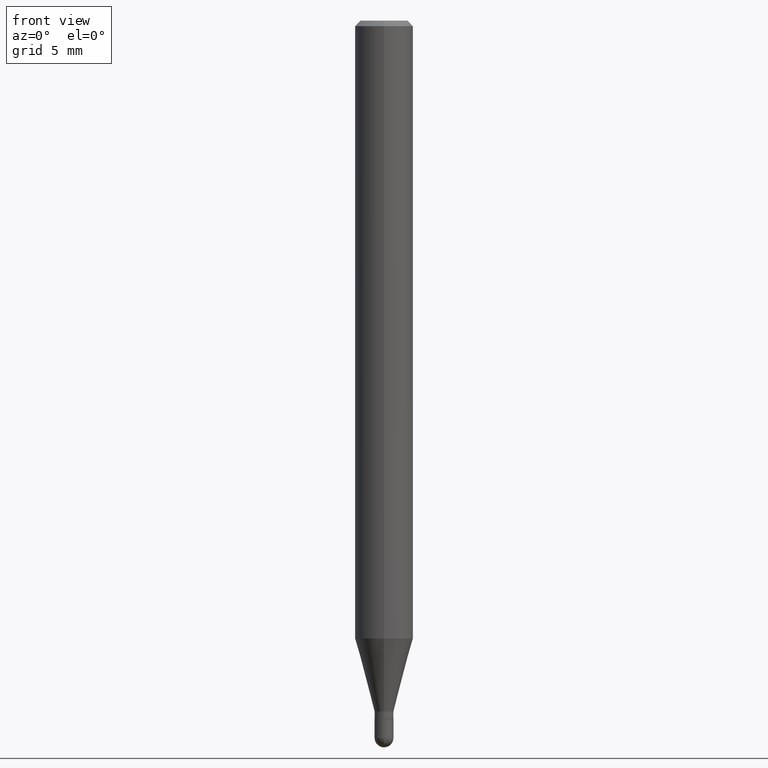
[diagram: clean part render]
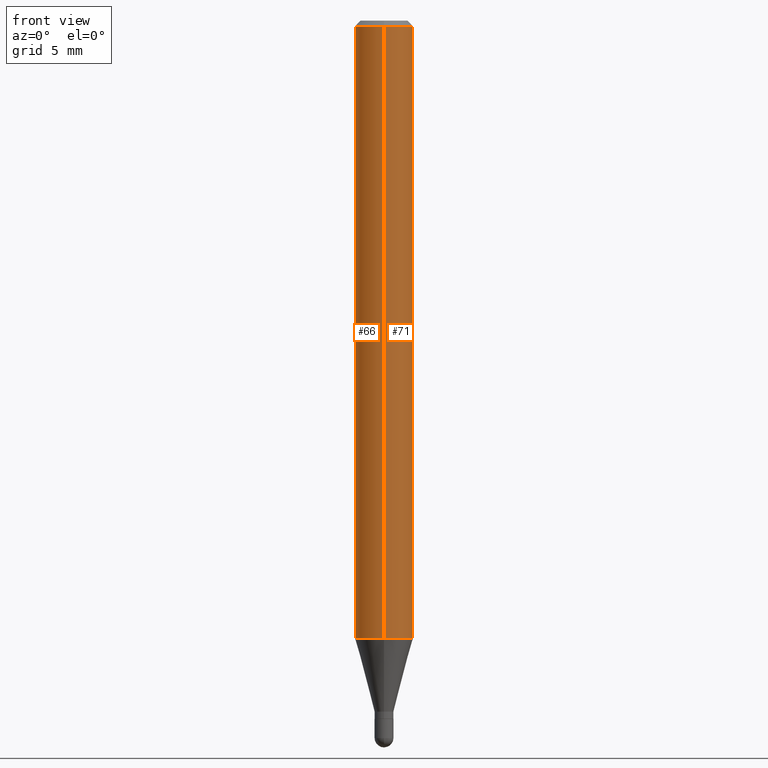
[diagram: same view with one multi-face feature highlighted, each face labeled with its STEP entity id]
A machine part, front view. The highlighted faces form ONE feature: a constant-radius fillet chain: 2 tangent blend faces with common blend radius 2.0002 mm. The faces share edges in the B-rep.
Their STEP definitions:
[1] entity #66 (Cylinder):
#6 = DIRECTION ( 'NONE',  ( -6.982962677686264344E-15, -1.000000000000000000, 3.469013325287953293E-15 ) ) ;
#9 = EDGE_CURVE ( 'NONE', #489, #104, #83, .T. ) ;
#21 = CARTESIAN_POINT ( 'NONE',  ( 0.000000000000000000, 0.000000000000000000, 0.000000000000000000 ) ) ;
#31 = EDGE_CURVE ( 'NONE', #191, #104, #275, .T. ) ;
#66 = ADVANCED_FACE ( 'NONE', ( #101 ), #178, .T. ) ;
#79 = VECTOR ( 'NONE', #320, 39.37007874015748143 ) ;
#83 = LINE ( 'NONE', #483, #79 ) ;
#101 = FACE_OUTER_BOUND ( 'NONE', #160, .T. ) ;
#104 = VERTEX_POINT ( 'NONE', #390 ) ;
#113 = AXIS2_PLACEMENT_3D ( 'NONE', #21, #139, #351 ) ;
#123 = CARTESIAN_POINT ( 'NONE',  ( 3.668224801302598957E-31, -5.237191087255964114E-17, -0.01499999999999976526 ) ) ;
#136 = CARTESIAN_POINT ( 'NONE',  ( 5.595524044110787031E-16, 0.07875000000000000056, -2.749525320809424424E-16 ) ) ;
#139 = DIRECTION ( 'NONE',  ( -2.445483200868437747E-29, 3.491460724837364104E-15, 1.000000000000000000 ) ) ;
#153 = CIRCLE ( 'NONE', #270, 0.07875000000000000056 ) ;
#160 = EDGE_LOOP ( 'NONE', ( #335, #419, #398, #170 ) ) ;
#162 = VECTOR ( 'NONE', #207, 39.37007874015748143 ) ;
#170 = ORIENTED_EDGE ( 'NONE', *, *, #31, .F. ) ;
#178 = CYLINDRICAL_SURFACE ( 'NONE', #113, 0.07875000000000000056 ) ;
#183 = CARTESIAN_POINT ( 'NONE',  ( 5.595524044111194280E-16, 0.07874999999999414413, -1.673141499577714519 ) ) ;
#191 = VERTEX_POINT ( 'NONE', #343 ) ;
#207 = DIRECTION ( 'NONE',  ( -2.445483200868437747E-29, 3.491460724837363709E-15, 1.000000000000000000 ) ) ;
#212 = VERTEX_POINT ( 'NONE', #183 ) ;
#236 = AXIS2_PLACEMENT_3D ( 'NONE', #123, #283, #440 ) ;
#239 = EDGE_CURVE ( 'NONE', #212, #191, #445, .T. ) ;
#250 = DIRECTION ( 'NONE',  ( -2.445483200868437747E-29, 3.491460724837364104E-15, 1.000000000000000000 ) ) ;
#270 = AXIS2_PLACEMENT_3D ( 'NONE', #371, #250, #6 ) ;
#275 = CIRCLE ( 'NONE', #236, 0.07875000000000000056 ) ;
#280 = EDGE_CURVE ( 'NONE', #212, #489, #153, .T. ) ;
#283 = DIRECTION ( 'NONE',  ( -2.445483200868437747E-29, 3.491460724837364104E-15, 1.000000000000000000 ) ) ;
#320 = DIRECTION ( 'NONE',  ( -2.445483200868437747E-29, 3.491460724837363709E-15, 1.000000000000000000 ) ) ;
#335 = ORIENTED_EDGE ( 'NONE', *, *, #239, .F. ) ;
#343 = CARTESIAN_POINT ( 'NONE',  ( 5.595524044111200197E-16, 0.07874999999999994504, -0.01500000000000004108 ) ) ;
#351 = DIRECTION ( 'NONE',  ( -6.982962677686264344E-15, -1.000000000000000000, 3.491460724837364498E-15 ) ) ;
#371 = CARTESIAN_POINT ( 'NONE',  ( 4.091639429893126858E-29, -5.841707832871080184E-15, -1.673141499577714297 ) ) ;
#375 = CARTESIAN_POINT ( 'NONE',  ( -5.499083108677527193E-16, -0.07875000000000585698, -1.673141499577714075 ) ) ;
#390 = CARTESIAN_POINT ( 'NONE',  ( -5.499083108677930499E-16, -0.07875000000000004219, -0.01499999999999948944 ) ) ;
#398 = ORIENTED_EDGE ( 'NONE', *, *, #9, .T. ) ;
#419 = ORIENTED_EDGE ( 'NONE', *, *, #280, .T. ) ;
#440 = DIRECTION ( 'NONE',  ( -6.982962677686264344E-15, -1.000000000000000000, 3.496114991891765576E-15 ) ) ;
#445 = LINE ( 'NONE', #136, #162 ) ;
#483 = CARTESIAN_POINT ( 'NONE',  ( -5.499083108677933457E-16, -0.07875000000000000056, 2.749525320809424424E-16 ) ) ;
#489 = VERTEX_POINT ( 'NONE', #375 ) ;
[2] entity #71 (Cylinder):
#1 = ORIENTED_EDGE ( 'NONE', *, *, #239, .T. ) ;
#9 = EDGE_CURVE ( 'NONE', #489, #104, #83, .T. ) ;
#43 = EDGE_CURVE ( 'NONE', #489, #212, #510, .T. ) ;
#48 = CIRCLE ( 'NONE', #70, 0.07875000000000000056 ) ;
#63 = ORIENTED_EDGE ( 'NONE', *, *, #313, .F. ) ;
#70 = AXIS2_PLACEMENT_3D ( 'NONE', #274, #85, #479 ) ;
#71 = ADVANCED_FACE ( 'NONE', ( #259 ), #348, .T. ) ;
#79 = VECTOR ( 'NONE', #320, 39.37007874015748143 ) ;
#83 = LINE ( 'NONE', #483, #79 ) ;
#85 = DIRECTION ( 'NONE',  ( -2.445483200868437747E-29, 3.491460724837364104E-15, 1.000000000000000000 ) ) ;
#104 = VERTEX_POINT ( 'NONE', #390 ) ;
#117 = AXIS2_PLACEMENT_3D ( 'NONE', #149, #422, #144 ) ;
#135 = DIRECTION ( 'NONE',  ( -2.445483200868437747E-29, 3.491460724837364104E-15, 1.000000000000000000 ) ) ;
#136 = CARTESIAN_POINT ( 'NONE',  ( 5.595524044110787031E-16, 0.07875000000000000056, -2.749525320809424424E-16 ) ) ;
#144 = DIRECTION ( 'NONE',  ( -6.982962677686264344E-15, -1.000000000000000000, 3.491460724837364498E-15 ) ) ;
#149 = CARTESIAN_POINT ( 'NONE',  ( 0.000000000000000000, 0.000000000000000000, 0.000000000000000000 ) ) ;
#161 = EDGE_LOOP ( 'NONE', ( #430, #1, #63, #190 ) ) ;
#162 = VECTOR ( 'NONE', #207, 39.37007874015748143 ) ;
#183 = CARTESIAN_POINT ( 'NONE',  ( 5.595524044111194280E-16, 0.07874999999999414413, -1.673141499577714519 ) ) ;
#190 = ORIENTED_EDGE ( 'NONE', *, *, #9, .F. ) ;
#191 = VERTEX_POINT ( 'NONE', #343 ) ;
#198 = AXIS2_PLACEMENT_3D ( 'NONE', #217, #135, #384 ) ;
#207 = DIRECTION ( 'NONE',  ( -2.445483200868437747E-29, 3.491460724837363709E-15, 1.000000000000000000 ) ) ;
#212 = VERTEX_POINT ( 'NONE', #183 ) ;
#217 = CARTESIAN_POINT ( 'NONE',  ( 4.091639429893126858E-29, -5.841707832871080184E-15, -1.673141499577714297 ) ) ;
#239 = EDGE_CURVE ( 'NONE', #212, #191, #445, .T. ) ;
#259 = FACE_OUTER_BOUND ( 'NONE', #161, .T. ) ;
#274 = CARTESIAN_POINT ( 'NONE',  ( 3.668224801302598957E-31, -5.237191087255964114E-17, -0.01499999999999976526 ) ) ;
#313 = EDGE_CURVE ( 'NONE', #104, #191, #48, .T. ) ;
#320 = DIRECTION ( 'NONE',  ( -2.445483200868437747E-29, 3.491460724837363709E-15, 1.000000000000000000 ) ) ;
#343 = CARTESIAN_POINT ( 'NONE',  ( 5.595524044111200197E-16, 0.07874999999999994504, -0.01500000000000004108 ) ) ;
#348 = CYLINDRICAL_SURFACE ( 'NONE', #117, 0.07875000000000000056 ) ;
#375 = CARTESIAN_POINT ( 'NONE',  ( -5.499083108677527193E-16, -0.07875000000000585698, -1.673141499577714075 ) ) ;
#384 = DIRECTION ( 'NONE',  ( -6.982962677686264344E-15, -1.000000000000000000, 3.469013325287953293E-15 ) ) ;
#390 = CARTESIAN_POINT ( 'NONE',  ( -5.499083108677930499E-16, -0.07875000000000004219, -0.01499999999999948944 ) ) ;
#422 = DIRECTION ( 'NONE',  ( -2.445483200868437747E-29, 3.491460724837364104E-15, 1.000000000000000000 ) ) ;
#430 = ORIENTED_EDGE ( 'NONE', *, *, #43, .T. ) ;
#445 = LINE ( 'NONE', #136, #162 ) ;
#479 = DIRECTION ( 'NONE',  ( -6.982962677686264344E-15, -1.000000000000000000, 3.496114991891765576E-15 ) ) ;
#483 = CARTESIAN_POINT ( 'NONE',  ( -5.499083108677933457E-16, -0.07875000000000000056, 2.749525320809424424E-16 ) ) ;
#489 = VERTEX_POINT ( 'NONE', #375 ) ;
#510 = CIRCLE ( 'NONE', #198, 0.07875000000000000056 ) ;